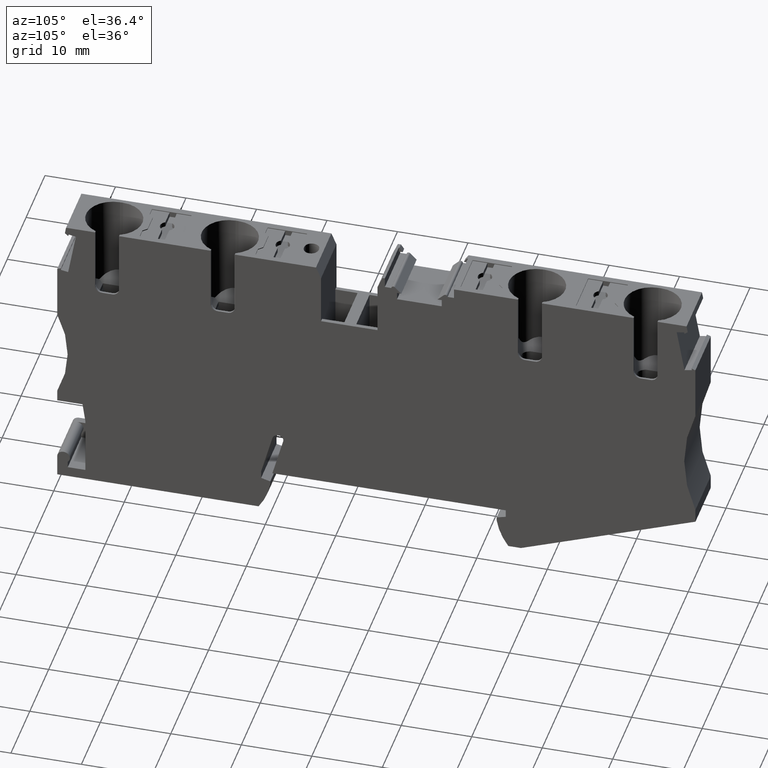
[diagram: clean part render]
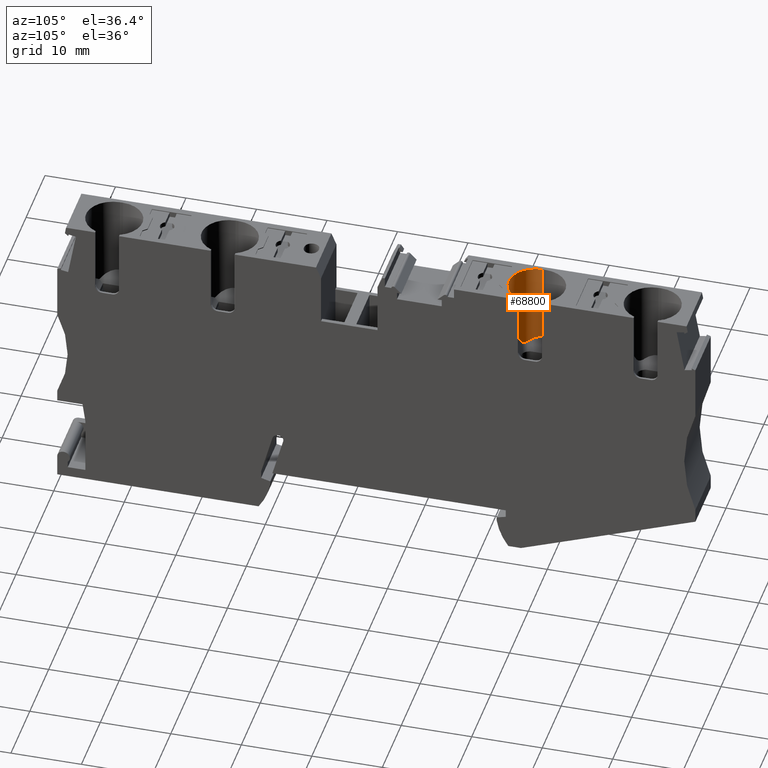
[diagram: same view with one face highlighted and labeled with its STEP entity id]
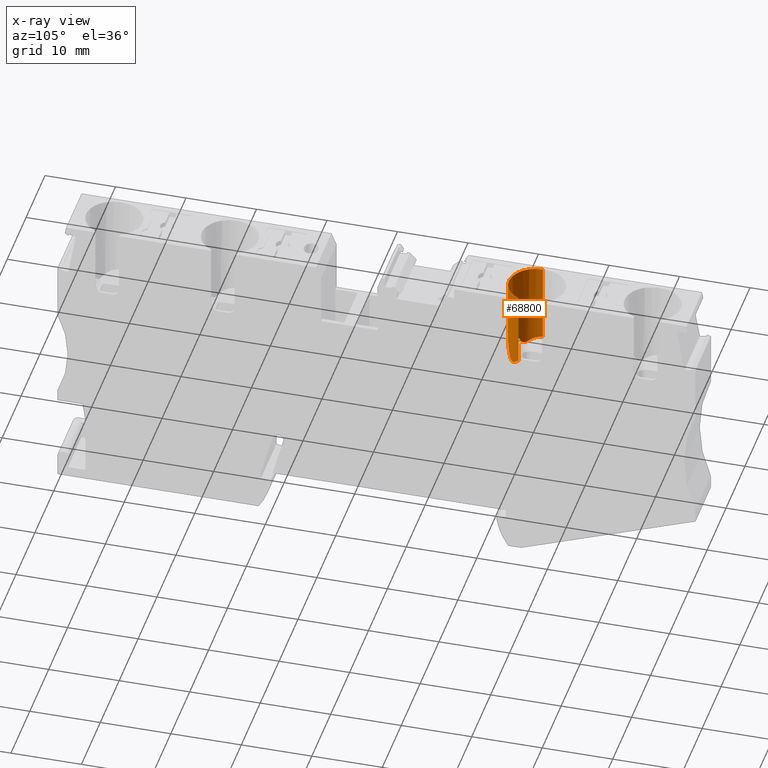
[diagram: x-ray of the same camera — body ghosted, the highlighted face saturated]
A machine part, auxiliary view. The second image highlights one B-rep face of the part: STEP entity #68800.
The next image is the same camera in x-ray: the body ghosted, the highlighted face saturated — about 0% of this face is hidden behind the body in this view.
In plain terms, the highlighted cylindrical surface (edge-blend (fillet) strip) has radius 3.8 mm, axis along (-0, -0, 1).
Its self-contained STEP definition (entity closure, byte-faithful):
#24360=CARTESIAN_POINT('',(22.3571672235856,-2.19999999115565,
46.069999999735));
#24370=VERTEX_POINT('',#24360);
#24400=CARTESIAN_POINT('',(22.3571672243546,-2.1999999911537,
49.869999999735));
#24410=DIRECTION('',(-3.66685598551866E-10,1.,-3.0648316678285E-11));
#24420=DIRECTION('',(-1.,-3.66685598545664E-10,2.02357539699923E-10));
#24430=AXIS2_PLACEMENT_3D('',#24400,#24410,#24420);
#24440=CIRCLE('',#24430,3.8);
#24450=CARTESIAN_POINT('',(20.8571672250611,-2.19999999152168,
53.3614180500578));
#24460=VERTEX_POINT('',#24450);
#24470=EDGE_CURVE('',#24370,#24460,#24440,.T.);
#57080=CARTESIAN_POINT('',(20.8571672250611,-2.19999998277277,
53.3614180500578));
#57090=DIRECTION('',(-3.66685598551867E-10,1.,-3.0648316678285E-11));
#57100=VECTOR('',#57090,1.);
#57110=LINE('',#57080,#57100);
#57120=CARTESIAN_POINT('',(20.8571672283978,-11.2999999846104,
53.3614180503366));
#57130=VERTEX_POINT('',#57120);
#57140=EDGE_CURVE('',#57130,#24460,#57110,.T.);
#57390=CARTESIAN_POINT('',(22.3571672235856,-2.19999998244621,
46.069999999735));
#57400=DIRECTION('',(-3.66685598551867E-10,1.,-3.0648316678285E-11));
#57410=VECTOR('',#57400,1.);
#57420=LINE('',#57390,#57410);
#57430=CARTESIAN_POINT('',(22.3571672277919,-13.671143960726,
46.0700000000866));
#57440=VERTEX_POINT('',#57430);
#57450=EDGE_CURVE('',#57440,#24370,#57420,.T.);
#57810=CARTESIAN_POINT('',(20.4893204279369,-14.2771673583432,
46.5607480712595));
#57820=VERTEX_POINT('',#57810);
#57870=CARTESIAN_POINT('',(22.3571672302816,-18.3637531554477,
49.8700000002304));
#57880=DIRECTION('',(4.02470177666286E-12,0.629320391073258,
0.777145961438006));
#57890=DIRECTION('',(4.75095365988311E-10,-0.777145961438006,
0.629320391073257));
#57900=AXIS2_PLACEMENT_3D('',#57870,#57880,#57890);
#57910=ELLIPSE('',#57900,6.03825977045367,3.8);
#57920=EDGE_CURVE('',#57440,#57820,#57910,.T.);
#60980=CARTESIAN_POINT('',(20.8571672289673,-12.8531987304885,
53.3614180503842));
#60990=VERTEX_POINT('',#60980);
#61020=CARTESIAN_POINT('',(22.3571672303098,-18.4406355909867,
49.8700000002327));
#61030=DIRECTION('',(-3.00641836201424E-10,0.529919264207648,
-0.848048096172396));
#61040=DIRECTION('',(-2.4452585736885E-10,0.848048096172396,
0.529919264207648));
#61050=AXIS2_PLACEMENT_3D('',#61020,#61030,#61040);
#61060=ELLIPSE('',#61050,7.17090367623358,3.8);
#61070=CARTESIAN_POINT('',(20.2352411903008,-13.3957907406536,
53.0223689328902));
#61080=VERTEX_POINT('',#61070);
#61090=EDGE_CURVE('',#61080,#60990,#61060,.T.);
#61370=CARTESIAN_POINT('',(16.0548661337287,8.03744804045437E-9,
60.2138096139126));
#61380=DIRECTION('',(-0.265647193428604,0.817577993568476,
0.510879431036377));
#61390=DIRECTION('',(-3.02788063841479E-10,0.529919264207147,
-0.848048096172709));
#61400=AXIS2_PLACEMENT_3D('',#61370,#61380,#61390);
#61410=CYLINDRICAL_SURFACE('',#61400,1.);
#61480=CARTESIAN_POINT('',(19.3051845231472,-13.2395193617201,
52.1339349741443));
#61490=VERTEX_POINT('',#61480);
#62290=CARTESIAN_POINT('',(22.3571672243546,-2.19999998232975,
49.869999999735));
#62300=DIRECTION('',(-3.66685598551867E-10,1.,-3.06483166782851E-11));
#62310=DIRECTION('',(-1.,-3.66685598551797E-10,2.02357539699923E-10));
#62320=AXIS2_PLACEMENT_3D('',#62290,#62300,#62310);
#62330=CYLINDRICAL_SURFACE('',#62320,3.8);
#62340=CARTESIAN_POINT('',(20.2352411903008,-13.3957907406536,
53.0223689328903));
#62350=CARTESIAN_POINT('',(20.2155465897518,-13.4170061373174,
53.0091120817345));
#62360=CARTESIAN_POINT('',(20.1953068711347,-13.4373764767609,
52.995219958558));
#62370=CARTESIAN_POINT('',(20.1745977851069,-13.4567331428268,
52.9806897346416));
#62380=CARTESIAN_POINT('',(20.1538887054617,-13.4760898029269,
52.9661595152034));
#62390=CARTESIAN_POINT('',(20.1327115148372,-13.4944320007264,
52.9509919639943));
#62400=CARTESIAN_POINT('',(20.1111471372958,-13.5116023989908,
52.9351906548163));
#62410=CARTESIAN_POINT('',(20.1003649824392,-13.5201875711193,
52.9272900250779));
#62420=CARTESIAN_POINT('',(20.0894861598217,-13.5284799000815,
52.9192311031063));
#62430=CARTESIAN_POINT('',(20.0785207805636,-13.5364606259595,
52.9110146934463));
#62440=CARTESIAN_POINT('',(20.067560066555,-13.5444379564167,
52.9028017794793));
#62450=CARTESIAN_POINT('',(20.0564891437355,-13.5521212408539,
52.8944137413835));
#62460=CARTESIAN_POINT('',(20.0453179518781,-13.5594872013923,
52.8858502818589));
#62470=CARTESIAN_POINT('',(20.0229766037229,-13.5742184396512,
52.8687241566347));
#62480=CARTESIAN_POINT('',(20.0002477616815,-13.5876685537985,
52.8509055758701));
#62490=CARTESIAN_POINT('',(19.9772870738067,-13.5996250083053,
52.8324602021965));
#62500=CARTESIAN_POINT('',(19.9543193175534,-13.6115851435705,
52.8140091501702));
#62510=CARTESIAN_POINT('',(19.9311553357021,-13.6220369241522,
52.7949606579061));
#62520=CARTESIAN_POINT('',(19.9078575895345,-13.6308369104314,
52.7753196541415));
#62530=CARTESIAN_POINT('',(19.8962033331576,-13.6352389369395,
52.7654946139112));
#62540=CARTESIAN_POINT('',(19.8845098489404,-13.6392289412462,
52.7555163756771));
#62550=CARTESIAN_POINT('',(19.8728051568576,-13.642780383142,
52.7454034668592));
#62560=CARTESIAN_POINT('',(19.8611003959816,-13.646331845911,
52.7352904986037));
#62570=CARTESIAN_POINT('',(19.8493849754437,-13.6494445981897,
52.7250433296682));
#62580=CARTESIAN_POINT('',(19.8376856470654,-13.6520964490918,
52.7146814515917));
#62590=CARTESIAN_POINT('',(19.8259846046845,-13.6547486885017,
52.7043180554548));
#62600=CARTESIAN_POINT('',(19.814279747966,-13.6569442454801,
52.6938222285121));
#62610=CARTESIAN_POINT('',(19.8026043253411,-13.6586594646568,
52.6832202853672));
#62620=CARTESIAN_POINT('',(19.7909269606166,-13.6603749691444,
52.6726165786863));
#62630=CARTESIAN_POINT('',(19.7792879058816,-13.6616093451901,
52.6619149540629));
#62640=CARTESIAN_POINT('',(19.7676948636022,-13.6623465980243,
52.6511207941425));
#62650=CARTESIAN_POINT('',(19.7444954673558,-13.6638219502418,
52.6295200799293));
#62660=CARTESIAN_POINT('',(19.7215199801202,-13.6633006387113,
52.6075835107728));
#62670=CARTESIAN_POINT('',(19.6989236557361,-13.6606741259829,
52.5854633321083));
#62680=CARTESIAN_POINT('',(19.6763155222266,-13.6580462406056,
52.5633315931582));
#62690=CARTESIAN_POINT('',(19.6541558302172,-13.6533213476373,
52.5410842375454));
#62700=CARTESIAN_POINT('',(19.6325397874307,-13.6464418607111,
52.5188498084158));
#62710=CARTESIAN_POINT('',(19.621735243443,-13.6430032239615,
52.5077361707373));
#62720=CARTESIAN_POINT('',(19.6110793549863,-13.6390294795538,
52.4966390789489));
#62730=CARTESIAN_POINT('',(19.6006074397199,-13.6345314446001,
52.4856028236462));
#62740=CARTESIAN_POINT('',(19.5901377279588,-13.630034356125,
52.4745688905975));
#62750=CARTESIAN_POINT('',(19.5798524220746,-13.6250161315959,
52.4635969008831));
#62760=CARTESIAN_POINT('',(19.5697163854283,-13.6194541567852,
52.4526571196491));
#62770=CARTESIAN_POINT('',(19.5595851110518,-13.6138947951878,
52.4417224783128));
#62780=CARTESIAN_POINT('',(19.5496251378373,-13.607801632977,
52.4308433974843));
#62790=CARTESIAN_POINT('',(19.5398658279935,-13.6011911578635,
52.4200613363259));
#62800=CARTESIAN_POINT('',(19.5301065927367,-13.5945807332716,
52.409279357571));
#62810=CARTESIAN_POINT('',(19.5205487709296,-13.5874534239299,
52.3985952525853));
#62820=CARTESIAN_POINT('',(19.5112192355513,-13.5798375664569,
52.3880508378021));
#62830=CARTESIAN_POINT('',(19.5018897115475,-13.5722217182692,
52.3775064358746));
#62840=CARTESIAN_POINT('',(19.4927891599785,-13.5641178970268,
52.3671025472874));
#62850=CARTESIAN_POINT('',(19.4839396469939,-13.5555651500529,
52.3568782167949));
#62860=CARTESIAN_POINT('',(19.4750900926179,-13.5470123630756,
52.3466538384806));
#62870=CARTESIAN_POINT('',(19.4664921528197,-13.5380113137758,
52.336609745488));
#62880=CARTESIAN_POINT('',(19.4581615762463,-13.5286094555383,
52.3267796459084));
#62890=CARTESIAN_POINT('',(19.4498309122946,-13.519207498686,
52.3169494432222));
#62900=CARTESIAN_POINT('',(19.4417680527859,-13.5094054219846,
52.307333821678));
#62910=CARTESIAN_POINT('',(19.4339816284248,-13.4992558211475,
52.2979592146329));
#62920=CARTESIAN_POINT('',(19.4261991453171,-13.4891113577323,
52.2885893527312));
#62930=CARTESIAN_POINT('',(19.4186552738904,-13.478571583771,
52.2794151377721));
#62940=CARTESIAN_POINT('',(19.4113479576936,-13.4676621534645,
52.270447629966));
#62950=CARTESIAN_POINT('',(19.4040408634236,-13.4567530544828,
52.2614803945074));
#62960=CARTESIAN_POINT('',(19.3969713263904,-13.4454756210765,
52.2527210904829));
#62970=CARTESIAN_POINT('',(19.3901393252527,-13.4338631966015,
52.2441831062194));
#62980=CARTESIAN_POINT('',(19.3833073469183,-13.4222508108856,
52.2356451504534));
#62990=CARTESIAN_POINT('',(19.3767130650103,-13.4103036936774,
52.2273287294898));
#63000=CARTESIAN_POINT('',(19.3703553142556,-13.3980591308839,
52.2192455362275));
#63010=CARTESIAN_POINT('',(19.3639975709644,-13.3858145824648,
52.2111623524543));
#63020=CARTESIAN_POINT('',(19.3578764856961,-13.3732728578743,
52.2033125742377));
#63030=CARTESIAN_POINT('',(19.3519892895389,-13.3604743094305,
52.1957053888712));
#63040=CARTESIAN_POINT('',(19.3461020899451,-13.3476757535156,
52.188098199064));
#63050=CARTESIAN_POINT('',(19.3404488724098,-13.3346206298842,
52.180733738173));
#63060=CARTESIAN_POINT('',(19.3350250918273,-13.3213514044309,
52.1736182206459));
#63070=CARTESIAN_POINT('',(19.3296013004554,-13.308082152581,
52.166502688964));
#63080=CARTESIAN_POINT('',(19.3244070093071,-13.2945990278851,
52.1596361972005));
#63090=CARTESIAN_POINT('',(19.3194359293979,-13.2809456767446,
52.1530218035083));
#63100=CARTESIAN_POINT('',(19.3144648338863,-13.2672922827509,
52.1464073890558));
#63110=CARTESIAN_POINT('',(19.3097169892488,-13.2534688580084,
52.140045135566));
#63120=CARTESIAN_POINT('',(19.3051845231472,-13.2395193617201,
52.1339349741443));
#63130=B_SPLINE_CURVE_WITH_KNOTS('',3,(#62340,#62350,#62360,#62370,
#62380,#62390,#62400,#62410,#62420,#62430,#62440,#62450,#62460,#62470,
#62480,#62490,#62500,#62510,#62520,#62530,#62540,#62550,#62560,#62570,
#62580,#62590,#62600,#62610,#62620,#62630,#62640,#62650,#62660,#62670,
#62680,#62690,#62700,#62710,#62720,#62730,#62740,#62750,#62760,#62770,
#62780,#62790,#62800,#62810,#62820,#62830,#62840,#62850,#62860,#62870,
#62880,#62890,#62900,#62910,#62920,#62930,#62940,#62950,#62960,#62970,
#62980,#62990,#63000,#63010,#63020,#63030,#63040,#63050,#63060,#63070,
#63080,#63090,#63100,#63110,#63120),.UNSPECIFIED.,.F.,.F.,(4,3,3,3,3,3,3
,3,3,3,3,3,3,3,3,3,3,3,3,3,3,3,3,3,3,3,4),(0.,0.0955684974803962,
0.191025976689546,0.23864174177376,0.286247449304832,0.381626282946902,
0.476853928197896,0.524465951570808,0.572054444944802,0.619638888345111,
0.66721401666112,0.762378483537276,0.857567928476379,0.905189609786566,
0.95281248287285,1.00064578893607,1.0486271801977,1.09664766519404,
1.14458408543874,1.19230949047488,1.2399336233064,1.28771099772936,
1.33562595508844,1.38363256192002,1.43166106815647,1.47962260489094,
1.52741325118026),.UNSPECIFIED.);
#63140=SURFACE_CURVE('',#63130,(#62330,#61410),.CURVE_3D.);
#63150=EDGE_CURVE('',#61080,#61490,#63140,.T.);
#63330=CARTESIAN_POINT('',(22.3571672318469,-22.6325562937259,
49.8700000003612));
#63340=DIRECTION('',(0.95105651621991,0.309016994606525,
-2.01924307459755E-10));
#63350=DIRECTION('',(0.309016994606525,-0.95105651621991,
-3.33836373919437E-11));
#63360=AXIS2_PLACEMENT_3D('',#63330,#63340,#63350);
#63370=ELLIPSE('',#63360,12.2970583191615,3.8);
#63380=CARTESIAN_POINT('',(19.5337687510582,-13.9430292793781,
47.3266909279072));
#63390=VERTEX_POINT('',#63380);
#63400=EDGE_CURVE('',#63390,#61490,#63370,.T.);
#64290=CARTESIAN_POINT('',(16.0548661288841,7.31225568983973E-9,
36.286085464534));
#64300=DIRECTION('',(0.244825436359815,-0.753495213943358,
0.610168393376517));
#64310=DIRECTION('',(5.99147574257342E-12,0.629320391073644,
0.777145961437693));
#64320=AXIS2_PLACEMENT_3D('',#64290,#64300,#64310);
#64330=CYLINDRICAL_SURFACE('',#64320,1.);
#64350=CARTESIAN_POINT('',(19.5337687510582,-13.9430292793781,
47.3266909279072));
#64360=CARTESIAN_POINT('',(19.5425936750794,-13.9701896027389,
47.3168941331375));
#64370=CARTESIAN_POINT('',(19.5522850041905,-13.9969307615627,
47.3062370502453));
#64380=CARTESIAN_POINT('',(19.5628874389629,-14.0229872908483,
47.2947329349717));
#64390=CARTESIAN_POINT('',(19.5681884752811,-14.0360151104988,
47.2889810738017));
#64400=CARTESIAN_POINT('',(19.5737166424055,-14.0488711778367,
47.2830183547331));
#64410=CARTESIAN_POINT('',(19.5794747975606,-14.0615228824408,
47.2768504174553));
#64420=CARTESIAN_POINT('',(19.5852329484991,-14.0741745777802,
47.2706824846941));
#64430=CARTESIAN_POINT('',(19.5912210137797,-14.0866217078806,
47.2643094238404));
#64440=CARTESIAN_POINT('',(19.5974400631392,-14.0988332012219,
47.257739298799));
#64450=CARTESIAN_POINT('',(19.6036591165707,-14.1110447025588,
47.2511691694557));
#64460=CARTESIAN_POINT('',(19.6101090571445,-14.1230203568236,
47.2444020903649));
#64470=CARTESIAN_POINT('',(19.6167892959896,-14.1347313600616,
47.2374482369365));
#64480=CARTESIAN_POINT('',(19.6234695501328,-14.1464423901183,
47.2304943675834));
#64490=CARTESIAN_POINT('',(19.630379982609,-14.1578885637719,
47.2233538602019));
#64500=CARTESIAN_POINT('',(19.6375186683692,-14.1690440283664,
47.2160384879368));
#64510=CARTESIAN_POINT('',(19.6446573840275,-14.180199539682,
47.2087230850337));
#64520=CARTESIAN_POINT('',(19.6520242139987,-14.1910641581253,
47.2012329687244));
#64530=CARTESIAN_POINT('',(19.6596164541749,-14.201615551327,
47.1935807843296));
#64540=CARTESIAN_POINT('',(19.6672044041066,-14.2121609821177,
47.1859329240528));
#64550=CARTESIAN_POINT('',(19.675029318959,-14.2224117121961,
47.1781110689041));
#64560=CARTESIAN_POINT('',(19.6831235844929,-14.2323817808676,
47.1700943372113));
#64570=CARTESIAN_POINT('',(19.6912146111931,-14.2423478601229,
47.1620808133278));
#64580=CARTESIAN_POINT('',(19.6995616014248,-14.2520152057115,
47.1538858667481));
#64590=CARTESIAN_POINT('',(19.7081549043557,-14.2613485430559,
47.1455305645874));
#64600=CARTESIAN_POINT('',(19.7167481610294,-14.2706818301596,
47.1371753074027));
#64610=CARTESIAN_POINT('',(19.7255874415772,-14.2796807192095,
47.128660010912));
#64620=CARTESIAN_POINT('',(19.7346584022316,-14.2883136975856,
47.120009553815));
#64630=CARTESIAN_POINT('',(19.7437293445258,-14.2969466584879,
47.1113591142272));
#64640=CARTESIAN_POINT('',(19.7530316215657,-14.3052133460605,
47.1025738755913));
#64650=CARTESIAN_POINT('',(19.7625468297136,-14.3130875507195,
47.0936813972106));
#64660=CARTESIAN_POINT('',(19.7720620508369,-14.3209617661161,
47.0847889067038));
#64670=CARTESIAN_POINT('',(19.7817898157567,-14.3284431859113,
47.0757895640108));
#64680=CARTESIAN_POINT('',(19.7917086384186,-14.3355119709696,
47.0667122479991));
#64690=CARTESIAN_POINT('',(19.8016275102338,-14.3425807910577,
47.0576348870044));
#64700=CARTESIAN_POINT('',(19.8117370306518,-14.3492367331843,
47.048479942905));
#64710=CARTESIAN_POINT('',(19.8220139742763,-14.3554668769256,
47.0392760686661));
#64720=CARTESIAN_POINT('',(19.83229134303,-14.361697278391,
47.0300718136879));
#64730=CARTESIAN_POINT('',(19.8427342426881,-14.3675009277976,
47.0208203051306));
#64740=CARTESIAN_POINT('',(19.8533236916227,-14.3728739975334,
47.0115445533249));
#64750=CARTESIAN_POINT('',(19.8639182016213,-14.378249635245,
47.0022643683165));
#64760=CARTESIAN_POINT('',(19.87469721526,-14.3832132315471,
46.9929268334921));
#64770=CARTESIAN_POINT('',(19.8856356781038,-14.3877528666203,
46.9835607068275));
#64780=CARTESIAN_POINT('',(19.8965741250465,-14.3922924950944,
46.9741945937784));
#64790=CARTESIAN_POINT('',(19.9076716115819,-14.3964079921637,
46.9648002585801));
#64800=CARTESIAN_POINT('',(19.9189001374674,-14.4000932592641,
46.9554067881516));
#64810=CARTESIAN_POINT('',(19.941360390718,-14.407464844209,
46.9366171690266));
#64820=CARTESIAN_POINT('',(19.9643075336496,-14.4131074443336,
46.917862086353));
#64830=CARTESIAN_POINT('',(19.9877062046774,-14.4170643759043,
46.899199694636));
#64840=CARTESIAN_POINT('',(20.011102212162,-14.4210208570453,
46.8805394273169));
#64850=CARTESIAN_POINT('',(20.0348475277369,-14.4232735288547,
46.8620536681841));
#64860=CARTESIAN_POINT('',(20.0588699413655,-14.423884478587,
46.8438093950086));
#64870=CARTESIAN_POINT('',(20.0828954029915,-14.4244955058374,
46.8255628069743));
#64880=CARTESIAN_POINT('',(20.1071281180018,-14.4234626362997,
46.8076108162198));
#64890=CARTESIAN_POINT('',(20.1314912867145,-14.4208631083508,
46.7900054220847));
#64900=CARTESIAN_POINT('',(20.1558564847005,-14.4182633638802,
46.7723985615493));
#64910=CARTESIAN_POINT('',(20.1802827544624,-14.4141050785557,
46.7551881167832));
#64920=CARTESIAN_POINT('',(20.2047169793182,-14.4084705978165,
46.7383937152497));
#64930=CARTESIAN_POINT('',(20.2291529022726,-14.4028357254994,
46.7215981465605));
#64940=CARTESIAN_POINT('',(20.2535364778227,-14.3957360481581,
46.7052606270188));
#64950=CARTESIAN_POINT('',(20.2777607084163,-14.387278699509,
46.6894232406374));
#64960=CARTESIAN_POINT('',(20.3019989830405,-14.3788164477005,
46.6735766725097));
#64970=CARTESIAN_POINT('',(20.326123953137,-14.3689768922163,
46.6582009719555));
#64980=CARTESIAN_POINT('',(20.3499867737247,-14.3578823415743,
46.6433567566265));
#64990=CARTESIAN_POINT('',(20.373852925339,-14.3467862422367,
46.6285104691838));
#65000=CARTESIAN_POINT('',(20.3974391460454,-14.3344444502358,
46.614206226442));
#65010=CARTESIAN_POINT('',(20.4206422448677,-14.3209844086216,
46.6004631848054));
#65020=CARTESIAN_POINT('',(20.4438639640241,-14.3075135654125,
46.5867091144684));
#65030=CARTESIAN_POINT('',(20.4667901286347,-14.2928713181587,
46.5734648871553));
#65040=CARTESIAN_POINT('',(20.4893204279609,-14.2771673583773,
46.56074807126));
#65050=B_SPLINE_CURVE_WITH_KNOTS('',3,(#64350,#64360,#64370,#64380,
#64390,#64400,#64410,#64420,#64430,#64440,#64450,#64460,#64470,#64480,
#64490,#64500,#64510,#64520,#64530,#64540,#64550,#64560,#64570,#64580,
#64590,#64600,#64610,#64620,#64630,#64640,#64650,#64660,#64670,#64680,
#64690,#64700,#64710,#64720,#64730,#64740,#64750,#64760,#64770,#64780,
#64790,#64800,#64810,#64820,#64830,#64840,#64850,#64860,#64870,#64880,
#64890,#64900,#64910,#64920,#64930,#64940,#64950,#64960,#64970,#64980,
#64990,#65000,#65010,#65020,#65030,#65040),.UNSPECIFIED.,.F.,.F.,(4,3,3,
3,3,3,3,3,3,3,3,3,3,3,3,3,3,3,3,3,3,3,3,4),(0.,0.0909282286546292,
0.136538637691247,0.182150824146623,0.227705793204755,0.27315829018399,
0.318480208099244,0.363771467758635,0.409264258849795,0.454887509009049,
0.500552638697955,0.546173190298618,0.591670326944087,0.636980014548112,
0.682247653941448,0.727547367937297,0.81805117487753,0.908537033576641,
0.999013427461557,1.08949406881752,1.1799887585937,1.27059191676322,
1.36113993847215,1.45179763708193),.UNSPECIFIED.);
#65060=SURFACE_CURVE('',#65050,(#62330,#64330),.CURVE_3D.);
#65070=EDGE_CURVE('',#63390,#57820,#65060,.T.);
#66450=CARTESIAN_POINT('',(20.8571672250609,-2.19999998277277,
53.3614180500577));
#66460=DIRECTION('',(-3.66685598551867E-10,1.,-3.0648316678285E-11));
#66470=VECTOR('',#66460,1.);
#66480=LINE('',#66450,#66470);
#66490=EDGE_CURVE('',#60990,#57130,#66480,.T.);
#68690=ORIENTED_EDGE('',*,*,#24470,.T.);
#68700=ORIENTED_EDGE('',*,*,#57450,.T.);
#68710=ORIENTED_EDGE('',*,*,#57920,.F.);
#68720=ORIENTED_EDGE('',*,*,#65070,.T.);
#68730=ORIENTED_EDGE('',*,*,#63400,.F.);
#68740=ORIENTED_EDGE('',*,*,#63150,.T.);
#68750=ORIENTED_EDGE('',*,*,#61090,.F.);
#68760=ORIENTED_EDGE('',*,*,#66490,.F.);
#68770=ORIENTED_EDGE('',*,*,#57140,.F.);
#68780=EDGE_LOOP('',(#68770,#68760,#68750,#68740,#68730,#68720,#68710,
#68700,#68690));
#68790=FACE_OUTER_BOUND('',#68780,.T.);
#68800=ADVANCED_FACE('',(#68790),#62330,.F.);